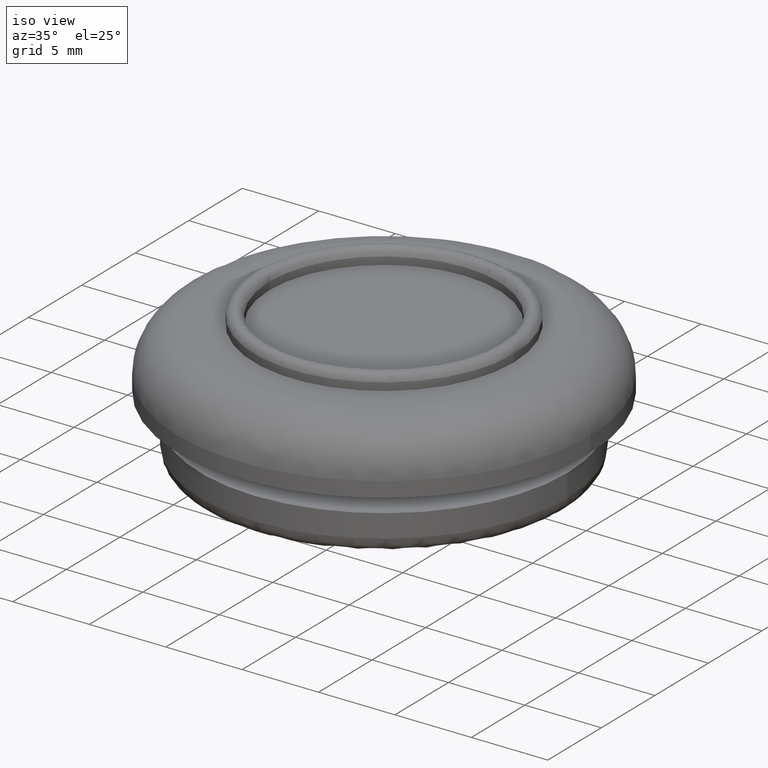
[diagram: clean part render]
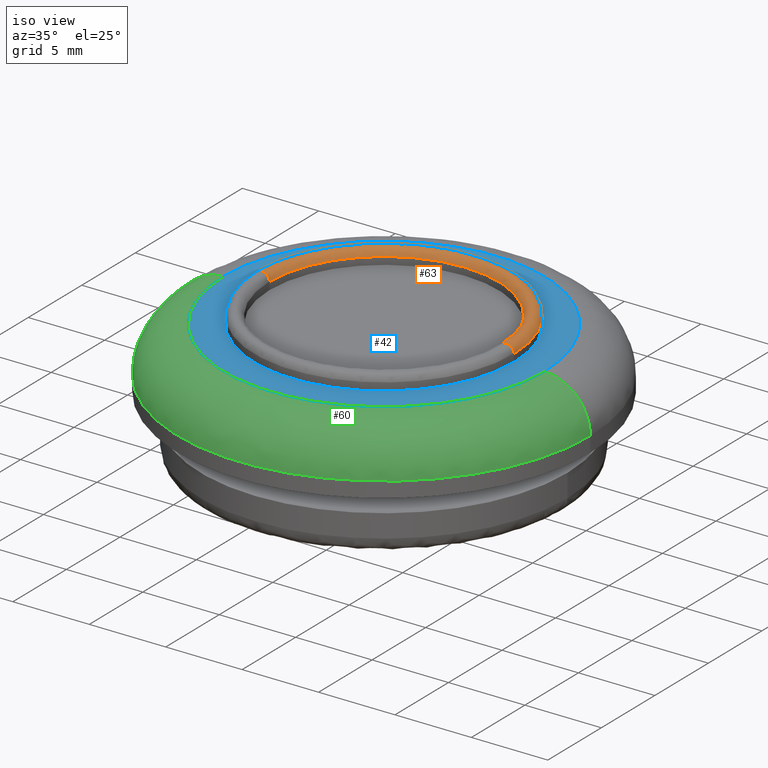
[diagram: same view with three faces highlighted in distinct colors, each labeled with its STEP entity id]
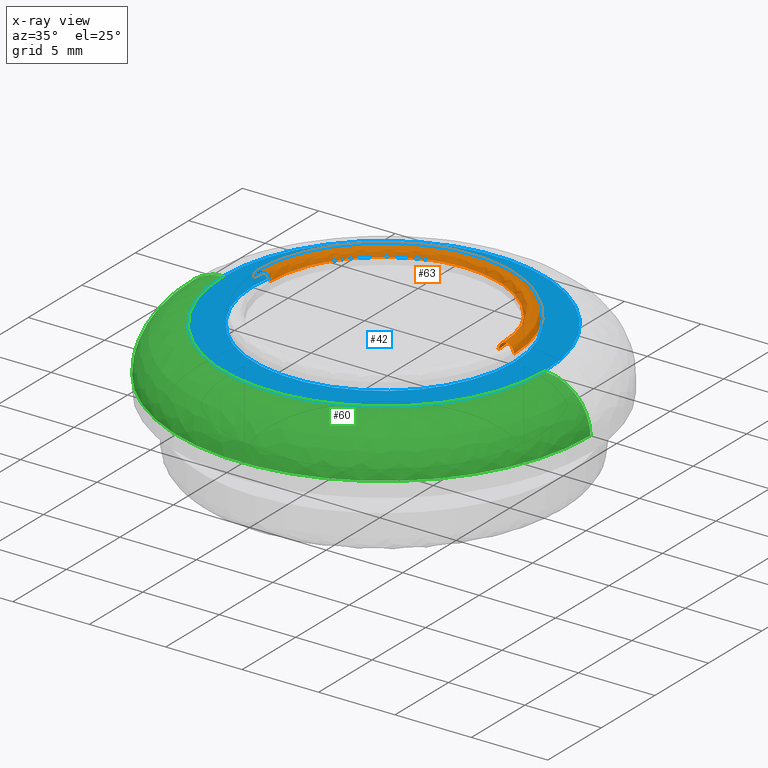
[diagram: x-ray of the same camera — body ghosted, the three highlighted faces saturated]
A machine part, iso view with three faces highlighted in distinct colors.
The next image is the same camera in x-ray (body ghosted, the three faces saturated) — at least one of them is partly hidden behind the body in this view.
Their STEP definitions:

[orange] entity #63 — the highlighted face is a freeform B-spline surface patch.
#63=ADVANCED_FACE('',(#299),#298,.T.);
#298=( BOUNDED_SURFACE() B_SPLINE_SURFACE( 2,2,((#532,#533,#534,#535,#536),(#537,#538,#539,#540,#541),(#542,#543,#544,#545,#546),(#547,#548,#549,#550,#551),(#552,#553,#554,#555,#556)), .UNSPECIFIED.,.F.,.F.,.F.) B_SPLINE_SURFACE_WITH_KNOTS((3,2,3),(3,2,3),(0.00000000000E+000,5.00000000000E-001,1.00000000000E+000),(0.00000000000E+000,5.00000000000E-001,1.00000000000E+000), .UNSPECIFIED. ) GEOMETRIC_REPRESENTATION_ITEM() RATIONAL_B_SPLINE_SURFACE(((1.00000000000E+000,7.07106781187E-001,1.00000000000E+000,7.07106781187E-001,1.00000000000E+000),(7.07106781187E-001,5.00000000000E-001,7.07106781187E-001,5.00000000000E-001,7.07106781187E-001),(1.00000000000E+000,7.07106781187E-001,1.00000000000E+000,7.07106781187E-001,1.00000000000E+000),(7.07106781187E-001,5.00000000000E-001,7.07106781187E-001,5.00000000000E-001,7.07106781187E-001),(1.00000000000E+000,7.07106781187E-001,1.00000000000E+000,7.07106781187E-001,1.00000000000E+000))) REPRESENTATION_ITEM('') SURFACE() );
#299=FACE_OUTER_BOUND('',#557,.T.);
#532=CARTESIAN_POINT('',(2.69278069758E+002,-8.92938585671E-016,2.72237988893E+002));
#533=CARTESIAN_POINT('',(2.69278069758E+002,-8.92938585671E-016,2.72737988893E+002));
#534=CARTESIAN_POINT('',(2.68778069758E+002,-8.92940607938E-016,2.72737988893E+002));
#535=CARTESIAN_POINT('',(2.68278069758E+002,-8.92942630204E-016,2.72737988893E+002));
#536=CARTESIAN_POINT('',(2.68278069758E+002,-8.92942630204E-016,2.72237988893E+002));
#537=CARTESIAN_POINT('',(2.69278069758E+002,7.50000000000E+000,2.72237988893E+002));
#538=CARTESIAN_POINT('',(2.69278069758E+002,7.50000000000E+000,2.72737988893E+002));
#539=CARTESIAN_POINT('',(2.68778069758E+002,8.00000000000E+000,2.72737988893E+002));
#540=CARTESIAN_POINT('',(2.68278069758E+002,8.50000000000E+000,2.72737988893E+002));
#541=CARTESIAN_POINT('',(2.68278069758E+002,8.50000000000E+000,2.72237988893E+002));
#542=CARTESIAN_POINT('',(2.76778069758E+002,7.50000000000E+000,2.72237988893E+002));
#543=CARTESIAN_POINT('',(2.76778069758E+002,7.50000000000E+000,2.72737988893E+002));
#544=CARTESIAN_POINT('',(2.76778069758E+002,8.00000000000E+000,2.72737988893E+002));
#545=CARTESIAN_POINT('',(2.76778069758E+002,8.50000000000E+000,2.72737988893E+002));
#546=CARTESIAN_POINT('',(2.76778069758E+002,8.50000000000E+000,2.72237988893E+002));
#547=CARTESIAN_POINT('',(2.84278069758E+002,7.50000000000E+000,2.72237988893E+002));
#548=CARTESIAN_POINT('',(2.84278069758E+002,7.50000000000E+000,2.72737988893E+002));
#549=CARTESIAN_POINT('',(2.84778069758E+002,8.00000000000E+000,2.72737988893E+002));
#550=CARTESIAN_POINT('',(2.85278069758E+002,8.50000000000E+000,2.72737988893E+002));
#551=CARTESIAN_POINT('',(2.85278069758E+002,8.50000000000E+000,2.72237988893E+002));
#552=CARTESIAN_POINT('',(2.84278069758E+002,2.56071816765E-017,2.72237988893E+002));
#553=CARTESIAN_POINT('',(2.84278069758E+002,2.56071816765E-017,2.72737988893E+002));
#554=CARTESIAN_POINT('',(2.84778069758E+002,8.68415439002E-017,2.72737988893E+002));
#555=CARTESIAN_POINT('',(2.85278069758E+002,1.48075906124E-016,2.72737988893E+002));
#556=CARTESIAN_POINT('',(2.85278069758E+002,1.48075906124E-016,2.72237988893E+002));
#557=EDGE_LOOP('',(#646,#647,#648,#649));
#646=ORIENTED_EDGE('',*,*,#670,.T.);
#647=ORIENTED_EDGE('',*,*,#694,.T.);
#648=ORIENTED_EDGE('',*,*,#689,.F.);
#649=ORIENTED_EDGE('',*,*,#695,.F.);
#670=EDGE_CURVE('',#836,#837,#838,.T.);
#689=EDGE_CURVE('',#950,#957,#958,.T.);
#694=EDGE_CURVE('',#837,#957,#988,.T.);
#695=EDGE_CURVE('',#836,#950,#994,.T.);
#836=VERTEX_POINT('',#1100);
#837=VERTEX_POINT('',#1101);
#838=CIRCLE('',#1105,7.50000000000E+000);
#950=VERTEX_POINT('',#1158);
#957=VERTEX_POINT('',#1161);
#958=CIRCLE('',#1165,8.50000000000E+000);
#988=(BOUNDED_CURVE() B_SPLINE_CURVE(2,(#1180,#1181,#1182,#1183,#1184),.UNSPECIFIED.,.F.,.F.) B_SPLINE_CURVE_WITH_KNOTS((3,2,3),(0.00000000000E+000,5.00000000000E-001,1.00000000000E+000),.UNSPECIFIED.) CURVE() GEOMETRIC_REPRESENTATION_ITEM() RATIONAL_B_SPLINE_CURVE((1.00000000000E+000,7.07106781187E-001,1.00000000000E+000,7.07106781187E-001,1.00000000000E+000)) REPRESENTATION_ITEM('') );
#994=(BOUNDED_CURVE() B_SPLINE_CURVE(2,(#1185,#1186,#1187,#1188,#1189),.UNSPECIFIED.,.F.,.F.) B_SPLINE_CURVE_WITH_KNOTS((3,2,3),(0.00000000000E+000,5.00000000000E-001,1.00000000000E+000),.UNSPECIFIED.) CURVE() GEOMETRIC_REPRESENTATION_ITEM() RATIONAL_B_SPLINE_CURVE((7.50000000000E-001,5.30330085890E-001,7.50000000000E-001,5.30330085890E-001,7.50000000000E-001)) REPRESENTATION_ITEM('') );
#1100=CARTESIAN_POINT('',(2.69278069758E+002,1.51427716575E-014,2.72237988893E+002));
#1101=CARTESIAN_POINT('',(2.84278069758E+002,-5.92118946467E-016,2.72237988893E+002));
#1102=CARTESIAN_POINT('',(2.76778069758E+002,0.00000000000E+000,2.72237988893E+002));
#1103=DIRECTION('',(0.00000000000E+000,0.00000000000E+000,-1.00000000000E+000));
#1104=DIRECTION('',(-1.00000000000E+000,1.69740764654E-015,0.00000000000E+000));
#1105=AXIS2_PLACEMENT_3D('',#1102,#1103,#1104);
#1158=CARTESIAN_POINT('',(2.68278069758E+002,8.88178419700E-016,2.72237988893E+002));
#1161=CARTESIAN_POINT('',(2.85278069758E+002,-1.78328760179E-014,2.72237988893E+002));
#1162=CARTESIAN_POINT('',(2.76778069758E+002,0.00000000000E+000,2.72237988893E+002));
#1163=DIRECTION('',(0.00000000000E+000,0.00000000000E+000,-1.00000000000E+000));
#1164=DIRECTION('',(1.00000000000E+000,-1.77635683940E-015,-0.00000000000E+000));
#1165=AXIS2_PLACEMENT_3D('',#1162,#1163,#1164);
#1180=CARTESIAN_POINT('',(2.84278069758E+002,-1.81136301704E-015,2.72237988893E+002));
#1181=CARTESIAN_POINT('',(2.84278069758E+002,-1.81136301704E-015,2.72737988893E+002));
#1182=CARTESIAN_POINT('',(2.84778069758E+002,-1.87259333474E-015,2.72737988893E+002));
#1183=CARTESIAN_POINT('',(2.85278069758E+002,-1.93382365243E-015,2.72737988893E+002));
#1184=CARTESIAN_POINT('',(2.85278069758E+002,-1.93382365243E-015,2.72237988893E+002));
#1185=CARTESIAN_POINT('',(2.69278069758E+002,5.92118946467E-016,2.72237988893E+002));
#1186=CARTESIAN_POINT('',(2.69278069758E+002,-4.18691322316E-016,2.72737988893E+002));
#1187=CARTESIAN_POINT('',(2.68778069758E+002,5.92118946467E-016,2.72737988893E+002));
#1188=CARTESIAN_POINT('',(2.68278069758E+002,0.00000000000E+000,2.72737988893E+002));
#1189=CARTESIAN_POINT('',(2.68278069758E+002,5.92118946467E-016,2.72237988893E+002));

[blue] entity #42 — the highlighted planar face has unit normal (0, 0, -1).
#42=ADVANCED_FACE('',(#85,#86),#84,.F.);
#84=PLANE('',#321);
#85=FACE_OUTER_BOUND('',#322,.T.);
#86=FACE_BOUND('',#323,.T.);
#318=CARTESIAN_POINT('',(3.00928069758E+002,-2.18238401754E+001,2.71737988893E+002));
#319=DIRECTION('',(0.00000000000E+000,0.00000000000E+000,-1.00000000000E+000));
#320=DIRECTION('',(-1.00000000000E+000,0.00000000000E+000,0.00000000000E+000));
#321=AXIS2_PLACEMENT_3D('',#318,#319,#320);
#322=EDGE_LOOP('',(#562,#563));
#323=EDGE_LOOP('',(#564,#565));
#562=ORIENTED_EDGE('',*,*,#654,.F.);
#563=ORIENTED_EDGE('',*,*,#655,.F.);
#564=ORIENTED_EDGE('',*,*,#656,.T.);
#565=ORIENTED_EDGE('',*,*,#657,.T.);
#654=EDGE_CURVE('',#724,#725,#726,.T.);
#655=EDGE_CURVE('',#725,#724,#732,.T.);
#656=EDGE_CURVE('',#738,#739,#740,.T.);
#657=EDGE_CURVE('',#739,#738,#746,.T.);
#724=VERTEX_POINT('',#1020);
#725=VERTEX_POINT('',#1021);
#726=CIRCLE('',#1025,1.05000000000E+001);
#732=CIRCLE('',#1029,1.05000000000E+001);
#738=VERTEX_POINT('',#1030);
#739=VERTEX_POINT('',#1031);
#740=CIRCLE('',#1035,8.50000000000E+000);
#746=CIRCLE('',#1039,8.50000000000E+000);
#1020=CARTESIAN_POINT('',(2.87278069758E+002,-1.15463194561E-013,2.71737988893E+002));
#1021=CARTESIAN_POINT('',(2.66278069758E+002,2.14367278991E-014,2.71737988893E+002));
#1022=CARTESIAN_POINT('',(2.76778069758E+002,0.00000000000E+000,2.71737988893E+002));
#1023=DIRECTION('',(0.00000000000E+000,0.00000000000E+000,-1.00000000000E+000));
#1024=DIRECTION('',(-1.00000000000E+000,1.71996455878E-015,0.00000000000E+000));
#1025=AXIS2_PLACEMENT_3D('',#1022,#1023,#1024);
#1026=CARTESIAN_POINT('',(2.76778069758E+002,0.00000000000E+000,2.71737988893E+002));
#1027=DIRECTION('',(0.00000000000E+000,0.00000000000E+000,-1.00000000000E+000));
#1028=DIRECTION('',(-1.00000000000E+000,1.71996455878E-015,0.00000000000E+000));
#1029=AXIS2_PLACEMENT_3D('',#1026,#1027,#1028);
#1030=CARTESIAN_POINT('',(2.85278069758E+002,-1.78328760179E-014,2.71737988893E+002));
#1031=CARTESIAN_POINT('',(2.68278069758E+002,8.88178419700E-016,2.71737988893E+002));
#1032=CARTESIAN_POINT('',(2.76778069758E+002,0.00000000000E+000,2.71737988893E+002));
#1033=DIRECTION('',(0.00000000000E+000,0.00000000000E+000,-1.00000000000E+000));
#1034=DIRECTION('',(1.00000000000E+000,-1.77635683940E-015,-0.00000000000E+000));
#1035=AXIS2_PLACEMENT_3D('',#1032,#1033,#1034);
#1036=CARTESIAN_POINT('',(2.76778069758E+002,0.00000000000E+000,2.71737988893E+002));
#1037=DIRECTION('',(0.00000000000E+000,0.00000000000E+000,-1.00000000000E+000));
#1038=DIRECTION('',(1.00000000000E+000,-1.77635683940E-015,-0.00000000000E+000));
#1039=AXIS2_PLACEMENT_3D('',#1036,#1037,#1038);

[green] entity #60 — the highlighted face is a freeform B-spline surface patch.
#60=ADVANCED_FACE('',(#269),#268,.T.);
#268=( BOUNDED_SURFACE() B_SPLINE_SURFACE( 2,2,((#454,#455,#456,#457,#458),(#459,#460,#461,#462,#463),(#464,#465,#466,#467,#468),(#469,#470,#471,#472,#473),(#474,#475,#476,#477,#478)), .UNSPECIFIED.,.F.,.F.,.F.) B_SPLINE_SURFACE_WITH_KNOTS((3,2,3),(3,2,3),(0.00000000000E+000,5.00000000000E-001,1.00000000000E+000),(0.00000000000E+000,5.00000000000E-001,1.00000000000E+000), .UNSPECIFIED. ) GEOMETRIC_REPRESENTATION_ITEM() RATIONAL_B_SPLINE_SURFACE(((1.00000000000E+000,7.07106781186E-001,1.00000000000E+000,7.07106781186E-001,1.00000000000E+000),(7.07106781187E-001,5.00000000000E-001,7.07106781187E-001,5.00000000000E-001,7.07106781187E-001),(1.00000000000E+000,7.07106781186E-001,1.00000000000E+000,7.07106781186E-001,1.00000000000E+000),(7.07106781187E-001,5.00000000000E-001,7.07106781187E-001,5.00000000000E-001,7.07106781187E-001),(1.00000000000E+000,7.07106781186E-001,1.00000000000E+000,7.07106781186E-001,1.00000000000E+000))) REPRESENTATION_ITEM('') SURFACE() );
#269=FACE_OUTER_BOUND('',#479,.T.);
#454=CARTESIAN_POINT('',(2.84278069758E+002,3.27088511573E-016,2.68737988893E+002));
#455=CARTESIAN_POINT('',(2.84278069758E+002,-1.00410946549E-013,2.71737988893E+002));
#456=CARTESIAN_POINT('',(2.87278069758E+002,-1.11349702672E-013,2.71737988893E+002));
#457=CARTESIAN_POINT('',(2.90278069758E+002,-1.22288458794E-013,2.71737988893E+002));
#458=CARTESIAN_POINT('',(2.90278069758E+002,-2.15504237331E-014,2.68737988893E+002));
#459=CARTESIAN_POINT('',(2.84278069758E+002,-7.50000000000E+000,2.68737988893E+002));
#460=CARTESIAN_POINT('',(2.84278069758E+002,-7.50000000000E+000,2.71737988893E+002));
#461=CARTESIAN_POINT('',(2.87278069758E+002,-1.05000000000E+001,2.71737988893E+002));
#462=CARTESIAN_POINT('',(2.90278069758E+002,-1.35000000000E+001,2.71737988893E+002));
#463=CARTESIAN_POINT('',(2.90278069758E+002,-1.35000000000E+001,2.68737988893E+002));
#464=CARTESIAN_POINT('',(2.76778069758E+002,-7.50000000000E+000,2.68737988893E+002));
#465=CARTESIAN_POINT('',(2.76778069758E+002,-7.50000000000E+000,2.71737988893E+002));
#466=CARTESIAN_POINT('',(2.76778069758E+002,-1.05000000000E+001,2.71737988893E+002));
#467=CARTESIAN_POINT('',(2.76778069758E+002,-1.35000000000E+001,2.71737988893E+002));
#468=CARTESIAN_POINT('',(2.76778069758E+002,-1.35000000000E+001,2.68737988893E+002));
#469=CARTESIAN_POINT('',(2.69278069758E+002,-7.50000000000E+000,2.68737988893E+002));
#470=CARTESIAN_POINT('',(2.69278069758E+002,-7.50000000000E+000,2.71737988893E+002));
#471=CARTESIAN_POINT('',(2.66278069758E+002,-1.05000000000E+001,2.71737988893E+002));
#472=CARTESIAN_POINT('',(2.63278069758E+002,-1.35000000000E+001,2.71737988893E+002));
#473=CARTESIAN_POINT('',(2.63278069758E+002,-1.35000000000E+001,2.68737988893E+002));
#474=CARTESIAN_POINT('',(2.69278069758E+002,5.41023840237E-014,2.68737988893E+002));
#475=CARTESIAN_POINT('',(2.69278069758E+002,-4.66356510372E-014,2.71737988893E+002));
#476=CARTESIAN_POINT('',(2.66278069758E+002,-3.60642889547E-014,2.71737988893E+002));
#477=CARTESIAN_POINT('',(2.63278069758E+002,-2.54929268722E-014,2.71737988893E+002));
#478=CARTESIAN_POINT('',(2.63278069758E+002,7.52451081888E-014,2.68737988893E+002));
#479=EDGE_LOOP('',(#634,#635,#636,#637));
#634=ORIENTED_EDGE('',*,*,#679,.F.);
#635=ORIENTED_EDGE('',*,*,#692,.F.);
#636=ORIENTED_EDGE('',*,*,#654,.T.);
#637=ORIENTED_EDGE('',*,*,#693,.T.);
#654=EDGE_CURVE('',#724,#725,#726,.T.);
#679=EDGE_CURVE('',#881,#874,#894,.T.);
#692=EDGE_CURVE('',#724,#881,#976,.T.);
#693=EDGE_CURVE('',#725,#874,#982,.T.);
#724=VERTEX_POINT('',#1020);
#725=VERTEX_POINT('',#1021);
#726=CIRCLE('',#1025,1.05000000000E+001);
#874=VERTEX_POINT('',#1118);
#881=VERTEX_POINT('',#1121);
#894=CIRCLE('',#1131,1.35000000000E+001);
#976=(BOUNDED_CURVE() B_SPLINE_CURVE(2,(#1172,#1173,#1174),.UNSPECIFIED.,.F.,.F.) B_SPLINE_CURVE_WITH_KNOTS((3,3),(5.00000000000E-001,1.00000000000E+000),.UNSPECIFIED.) CURVE() GEOMETRIC_REPRESENTATION_ITEM() RATIONAL_B_SPLINE_CURVE((1.00000000000E+000,7.07106781186E-001,1.00000000000E+000)) REPRESENTATION_ITEM('') );
#982=(BOUNDED_CURVE() B_SPLINE_CURVE(3,(#1175,#1176,#1177,#1178,#1179),.UNSPECIFIED.,.F.,.F.) B_SPLINE_CURVE_WITH_KNOTS((4,1,4),(4.99999990712E-001,7.49999994651E-001,1.00000000000E+000),.UNSPECIFIED.) CURVE() GEOMETRIC_REPRESENTATION_ITEM() RATIONAL_B_SPLINE_CURVE((1.00000000000E+000,1.00000000000E+000,1.00000000000E+000,1.00000000000E+000,1.00000000000E+000)) REPRESENTATION_ITEM('') );
#1020=CARTESIAN_POINT('',(2.87278069758E+002,-1.15463194561E-013,2.71737988893E+002));
#1021=CARTESIAN_POINT('',(2.66278069758E+002,2.14367278991E-014,2.71737988893E+002));
#1022=CARTESIAN_POINT('',(2.76778069758E+002,0.00000000000E+000,2.71737988893E+002));
#1023=DIRECTION('',(0.00000000000E+000,0.00000000000E+000,-1.00000000000E+000));
#1024=DIRECTION('',(-1.00000000000E+000,1.71996455878E-015,0.00000000000E+000));
#1025=AXIS2_PLACEMENT_3D('',#1022,#1023,#1024);
#1118=CARTESIAN_POINT('',(2.63278069758E+002,-1.77635683940E-015,2.68737988893E+002));
#1121=CARTESIAN_POINT('',(2.90278069758E+002,-2.83228030872E-014,2.68737988893E+002));
#1128=CARTESIAN_POINT('',(2.76778069758E+002,0.00000000000E+000,2.68737988893E+002));
#1129=DIRECTION('',(0.00000000000E+000,0.00000000000E+000,-1.00000000000E+000));
#1130=DIRECTION('',(1.00000000000E+000,-1.77635683940E-015,-0.00000000000E+000));
#1131=AXIS2_PLACEMENT_3D('',#1128,#1129,#1130);
#1172=CARTESIAN_POINT('',(2.87278069758E+002,-1.11349702672E-013,2.71737988893E+002));
#1173=CARTESIAN_POINT('',(2.90278069758E+002,-1.22288458794E-013,2.71737988893E+002));
#1174=CARTESIAN_POINT('',(2.90278069758E+002,-2.15504237331E-014,2.68737988893E+002));
#1175=CARTESIAN_POINT('',(2.66278069837E+002,-3.37507802499E-014,2.71737988893E+002));
#1176=CARTESIAN_POINT('',(2.65499718507E+002,-3.08651218125E-014,2.71744661092E+002));
#1177=CARTESIAN_POINT('',(2.63927940844E+002,-2.71928638789E-015,2.71088117873E+002));
#1178=CARTESIAN_POINT('',(2.63271397580E+002,5.22590316075E-014,2.69516340227E+002));
#1179=CARTESIAN_POINT('',(2.63278069758E+002,7.81597009336E-014,2.68737988893E+002));